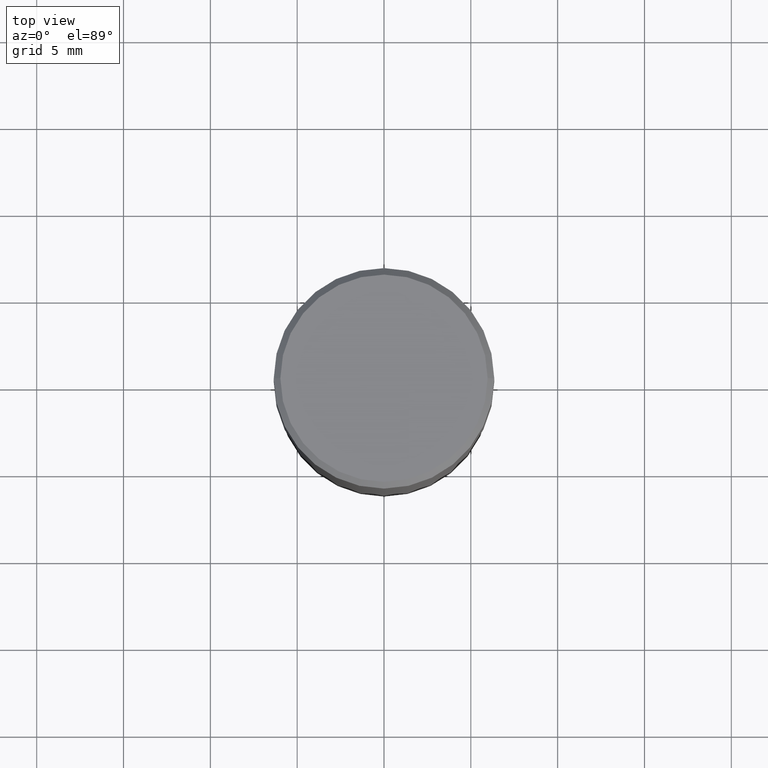
[diagram: clean part render]
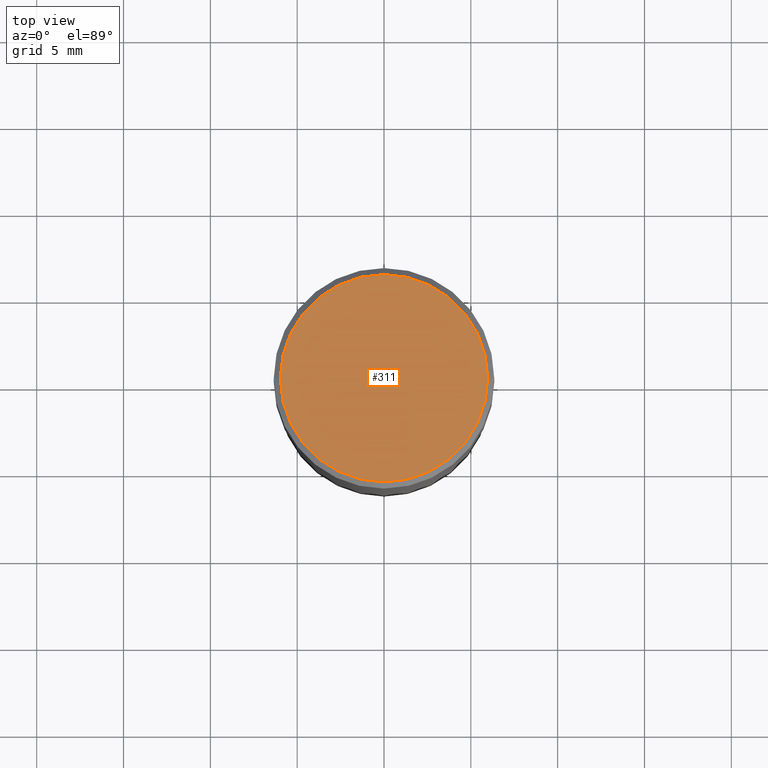
[diagram: same view with one face highlighted and labeled with its STEP entity id]
A machine part, top view. The second image highlights one B-rep face of the part: STEP entity #311.
In plain terms, the highlighted planar face has unit normal (0, -0, -1).
Its self-contained STEP definition (entity closure, byte-faithful):
#12 = CIRCLE ( 'NONE', #375, 0.2349999999999999867 ) ;
#15 = DIRECTION ( 'NONE',  ( 1.000000000000000000, -6.982962677686267499E-15, 4.878549297894958458E-29 ) ) ;
#24 = DIRECTION ( 'NONE',  ( 1.000000000000000000, -6.982962677686267499E-15, 4.878549297894958458E-29 ) ) ;
#34 = EDGE_CURVE ( 'NONE', #137, #63, #12, .T. ) ;
#43 = CARTESIAN_POINT ( 'NONE',  ( -0.2349999999999999867, 1.667182339297596256E-15, 1.568636843340762393E-16 ) ) ;
#61 = AXIS2_PLACEMENT_3D ( 'NONE', #457, #379, #166 ) ;
#63 = VERTEX_POINT ( 'NONE', #43 ) ;
#66 = EDGE_LOOP ( 'NONE', ( #89, #402 ) ) ;
#73 = CARTESIAN_POINT ( 'NONE',  ( -3.836052468622837406E-45, 5.476866265946494270E-31, 1.568636843340877764E-16 ) ) ;
#89 = ORIENTED_EDGE ( 'NONE', *, *, #221, .T. ) ;
#137 = VERTEX_POINT ( 'NONE', #361 ) ;
#166 = DIRECTION ( 'NONE',  ( -1.000000000000000000, 6.982962677686265922E-15, -4.876176775795935793E-29 ) ) ;
#196 = FACE_OUTER_BOUND ( 'NONE', #66, .T. ) ;
#221 = EDGE_CURVE ( 'NONE', #63, #137, #452, .T. ) ;
#258 = CARTESIAN_POINT ( 'NONE',  ( -3.836052468622837406E-45, 5.476866265946494270E-31, 1.568636843340877764E-16 ) ) ;
#303 = PLANE ( 'NONE',  #61 ) ;
#311 = ADVANCED_FACE ( 'NONE', ( #196 ), #303, .F. ) ;
#323 = DIRECTION ( 'NONE',  ( -2.445468806185136597E-29, 3.491481338843145583E-15, 1.000000000000000000 ) ) ;
#332 = AXIS2_PLACEMENT_3D ( 'NONE', #258, #370, #24 ) ;
#361 = CARTESIAN_POINT ( 'NONE',  ( 0.2349999999999999867, -1.689856874500919833E-15, 1.568636843340994368E-16 ) ) ;
#370 = DIRECTION ( 'NONE',  ( -2.445468806185136597E-29, 3.491481338843145583E-15, 1.000000000000000000 ) ) ;
#375 = AXIS2_PLACEMENT_3D ( 'NONE', #73, #323, #15 ) ;
#379 = DIRECTION ( 'NONE',  ( 2.438088387897960049E-29, -3.491481338843145188E-15, -1.000000000000000000 ) ) ;
#402 = ORIENTED_EDGE ( 'NONE', *, *, #34, .T. ) ;
#452 = CIRCLE ( 'NONE', #332, 0.2349999999999999867 ) ;
#457 = CARTESIAN_POINT ( 'NONE',  ( 1.640996229256272519E-15, 0.2349999999999999867, -7.420662724610952803E-16 ) ) ;